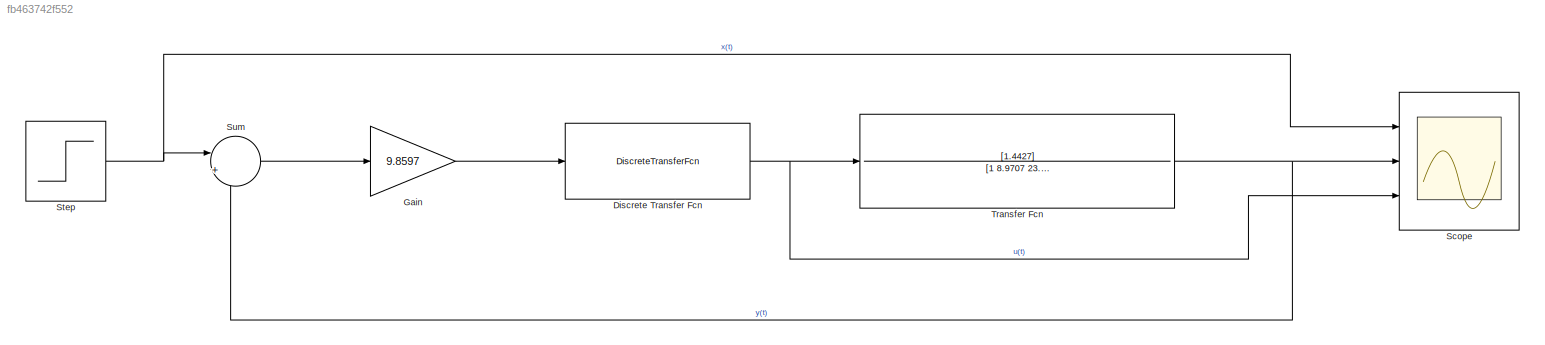
MODEL slx_fb463742f552
KIND model
CONFIG AbsTol = auto
CONFIG EnableMultiTasking = off
CONFIG FixedStep = auto
CONFIG MaxStep = auto
CONFIG MinStep = auto
CONFIG RelTol = 1e-3
CONFIG SampleTimeConstraint = Unconstrained
CONFIG SolverName = VariableStepAuto
CONFIG StartTime = 0.0
CONFIG StopTime = 15
BLOCK [DiscreteTransferFcn] Discrete Transfer Fcn
  Denominator = [1.0000   -1.8484    0.8484]
  InputPortMap = u0
  Numerator = [1.0000   -1.8852    0.8868]
  Ports = [1, 1]
  SampleTime = 0.1
BLOCK [Gain] Gain
  Gain = 9.8597
BLOCK [Scope] Scope
  Floating = off
  NumInputPorts = 3
  Ports = [3]
  ScopeSpecificationString = Simulink.scopes.TimeScopeBlockCfg('CurrentConfiguration', extmgr.ConfigurationSet(extmgr.Configuration('Core','General UI',true),extmgr.Configuration('Core','Source UI',true),extmgr.Configuration('Sources','WiredSimulink',true,'SampleTime','0.1'),extmgr.Configuration('Visuals','Time Domain',true,'SerializedDisplays',{struct('MinYLimReal','-1.23246','MaxYLimReal','11.09216','YLabelReal','','MinYLim...<+1456ch>
BLOCK [Step] Step
  SampleTime = 0
BLOCK [Sum] Sum
  Inputs = |+-
  Ports = [2, 1]
BLOCK [TransferFcn] Transfer Fcn
  Denominator = [1 8.9707 23.2351 17.8070 2.3901]
  Numerator = [1.4427]
NET Discrete Transfer Fcn:1 -> Scope:3, Transfer Fcn:1
LINE Gain:1 -> Discrete Transfer Fcn:1
NET Step:1 -> Scope:1, Sum:1
LINE Sum:1 -> Gain:1
NET Transfer Fcn:1 -> Scope:2, Sum:2
note: NET lines group one-source signal fan-out (src -> all destinations, sorted); 1:1 wires keep LINE
